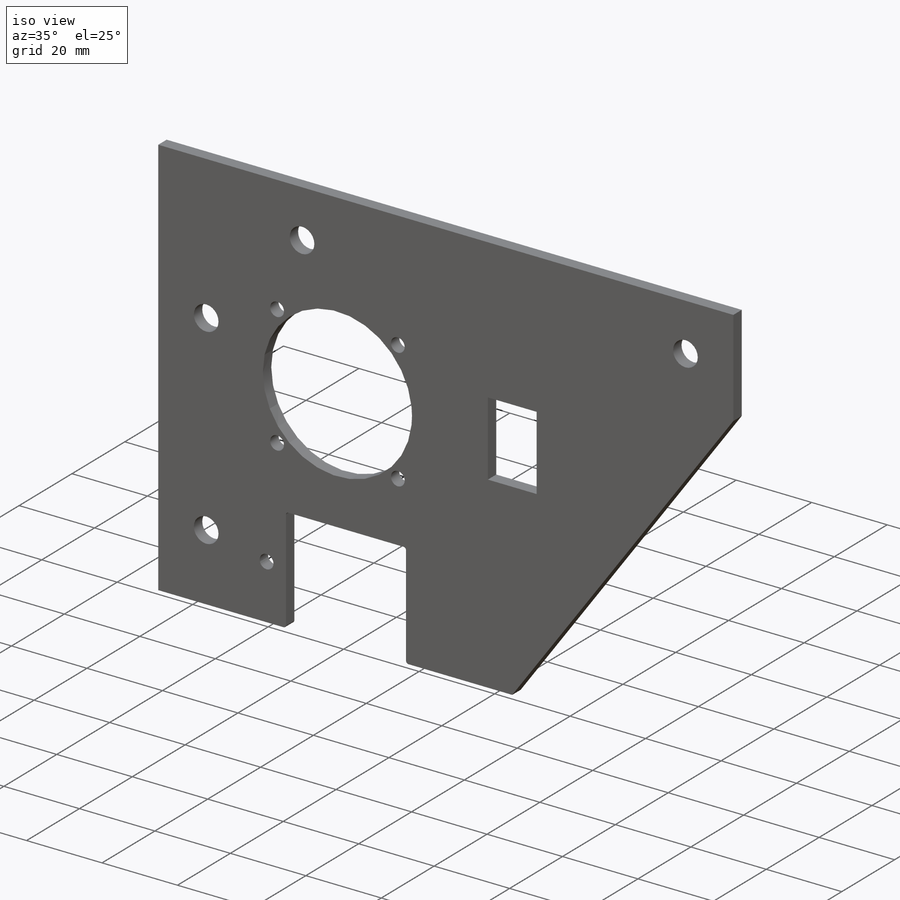
[diagram: iso view]
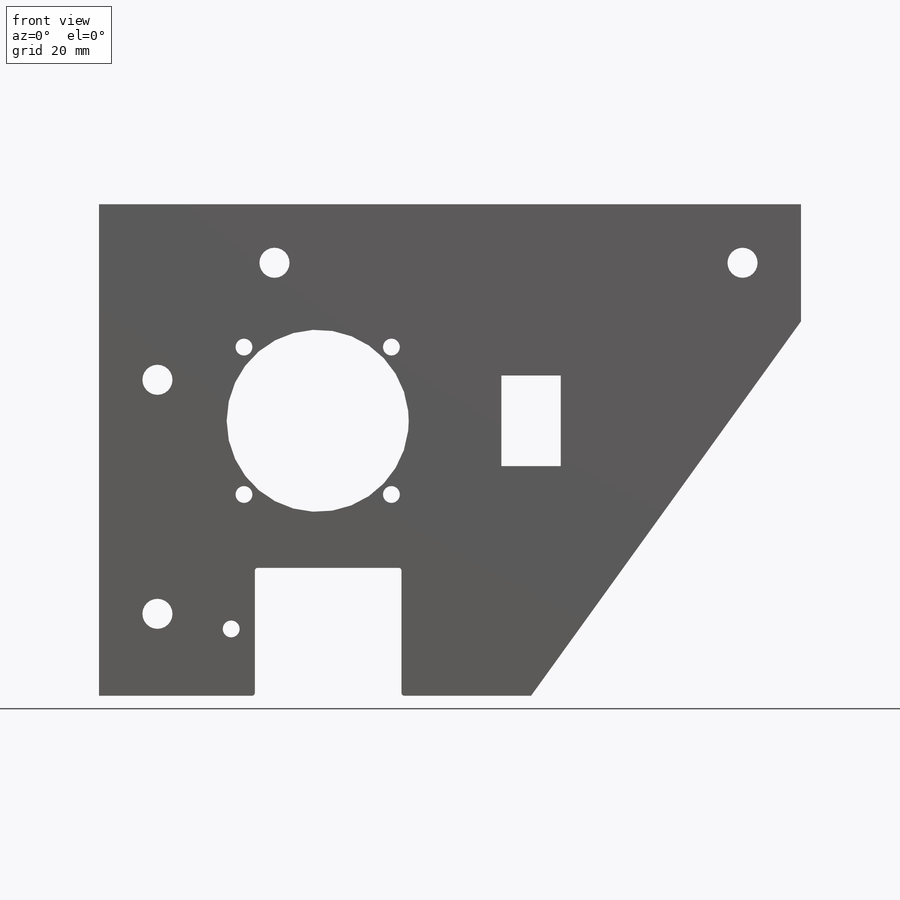
[diagram: front view]
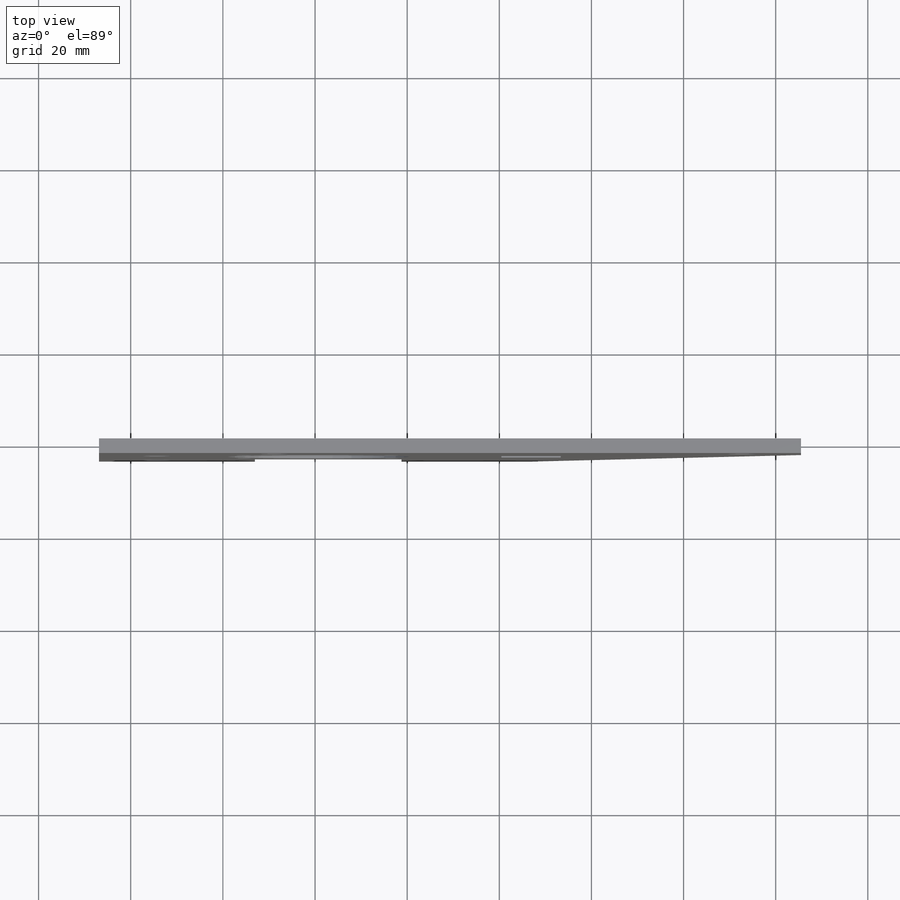
[diagram: top view]
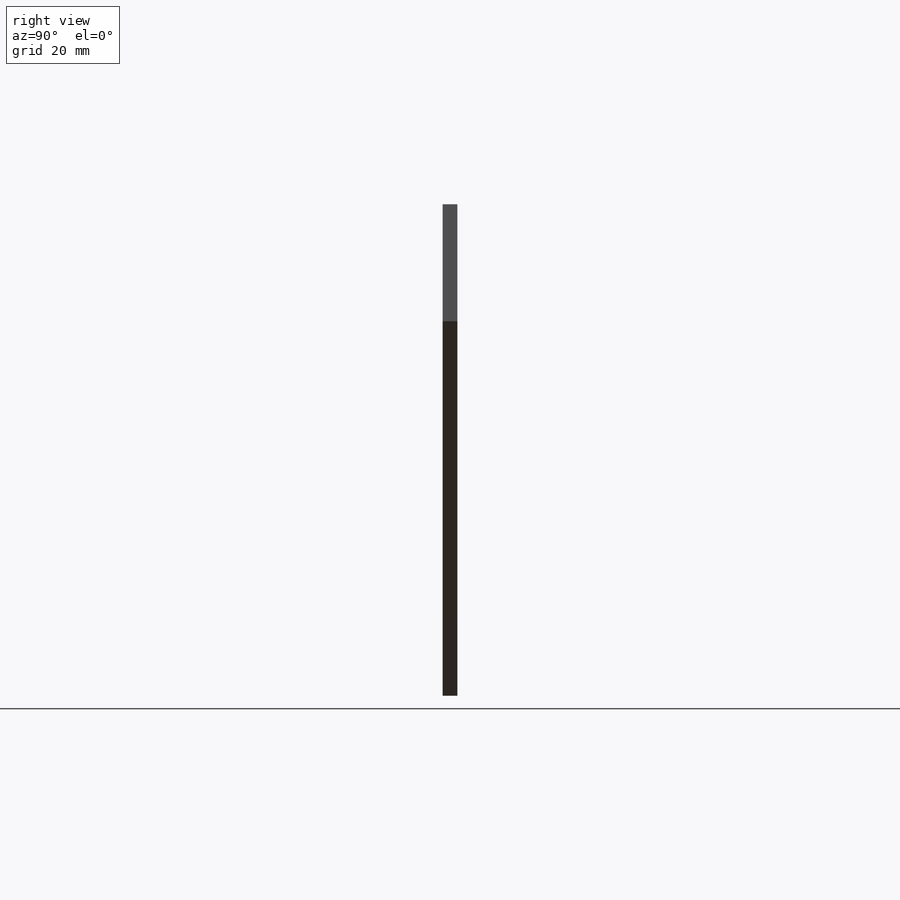
[diagram: right view]
SOLIDWORKS PART (.sldprt)
format: sldprt  version: not decoded by parser v0  size: 491,008 bytes
history: native  units: mm
features: sketch x6, hole x2, material x1, extrude x1, fillet x1 (+12 scaffold rows collapsed)
feature tree (23):
  scaffold x12  (default folders/planes/origin — collapsed)
  material  "Material <not specified>"
  sketch  "Sketch1"  dims[c1.D3=38.0mm c1.D4=38.0mm c1.D5=~3.481041mm c1.D6=3.302mm c1.D7=38.0mm c1.D12=3.302mm c1.D1=~134.119697mm c1.D2=~210.559941mm c2.D1=81.28mm c2.D2=43.0mm c2.D4=2.6mm c2.D5=~39.898012mm c2.D6=~37.494152mm c3.D5=32.0mm c3.D7=1.92mm c3.D8=~21.647912mm c3.D9=~25.657838mm c4.D8=30.3mm c4.D9=23.5mm c4.D10=3.5mm c4.D11=3.5mm c4.D13=3.302mm c4.D14=14.5mm]
  sketch  "Sketch2"  dims[c1.D8=38.0mm c1.D1=~222.682453mm c2.D1=1.0deg c2.D2=25.4mm c3.D1=25.4mm c3.D2=25.4mm c3.D3=152.4mm c3.D4=25.4mm c3.D5=0.762mm c3.D6=0.762mm c3.D7=0.762mm c3.D9=~19.289648mm c3.D10=~17.452539mm c4.D9=19.685mm c4.D10=12.9032mm c4.D8=0.762mm]
  extrude  "Boss-Extrude1"  Depth=3.175mm
  hole  "#6 Clearance Hole1"  Diameter=3.6576mm Depth=3.175mm
  sketch  "Sketch4"
  sketch  "Sketch3"  dims[hole-wizard template sketch: 60 standard entries collapsed; hole parameters kept: c18.Thru Hole Depth=3.175mm]
  fillet  "Fillet1"  Radius=0.635mm
  hole  "1/4 Clearance Hole1"  Diameter=6.5278mm Depth=3.175mm
  sketch  "Sketch6"  dims[c1.D1=12.7mm c1.D2=12.7mm c1.D3=12.7mm c1.D4=50.8mm c2.D4=~30.998382deg]
  sketch  "Sketch5"  dims[hole-wizard template sketch: 60 standard entries collapsed; hole parameters kept: c18.Thru Hole Depth=3.175mm]
decode coverage: 9 of 10 modeling features carry decoded parameters
note: ~ marks probable driven/reference dimensions
note: suppression state not decoded; provenance and decode notes live in map.json
